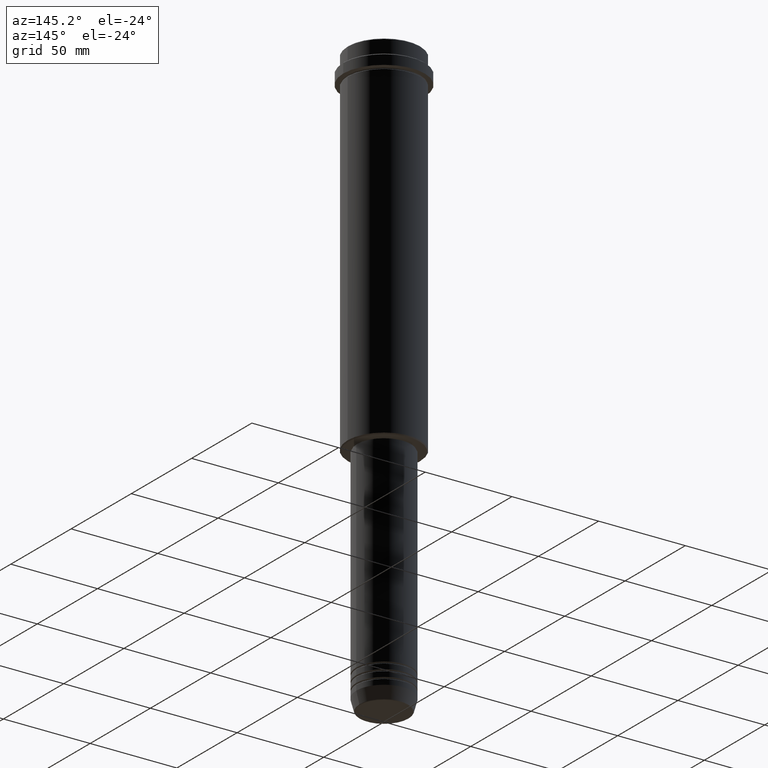
[diagram: clean part render]
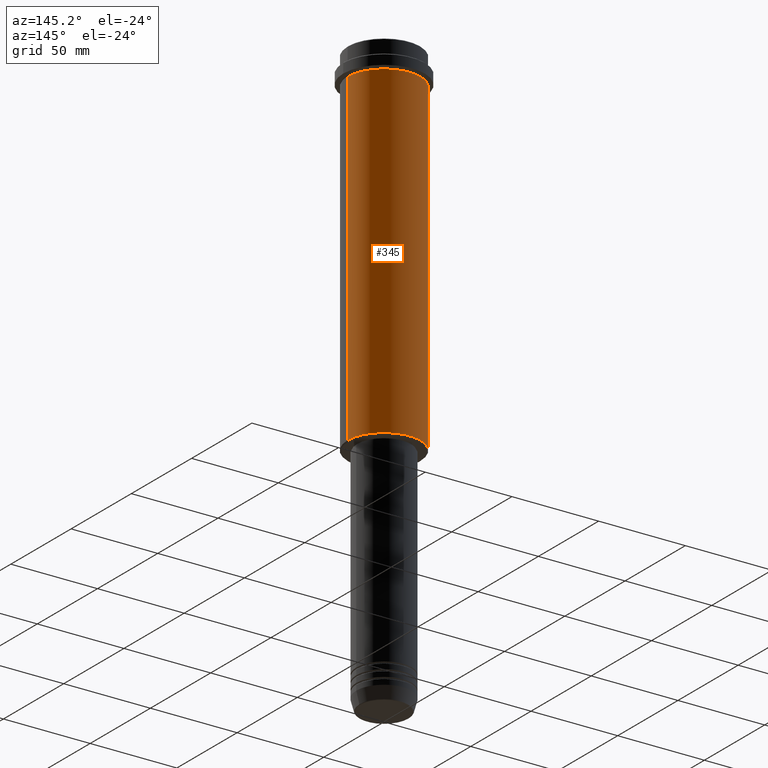
[diagram: same view with one face highlighted and labeled with its STEP entity id]
A machine part, auxiliary view. The second image highlights one B-rep face of the part: STEP entity #345.
In plain terms, the highlighted cylindrical surface (partial cylindrical patch) has radius 21 mm, axis along (-0, -0, 1).
Its self-contained STEP definition (entity closure, byte-faithful):
#16 = DIRECTION ( 'NONE',  ( -0.000000000000000000, -0.000000000000000000, 1.000000000000000000 ) ) ;
#25 = LINE ( 'NONE', #1323, #1312 ) ;
#35 = VERTEX_POINT ( 'NONE', #832 ) ;
#46 = ORIENTED_EDGE ( 'NONE', *, *, #584, .F. ) ;
#127 = CYLINDRICAL_SURFACE ( 'NONE', #1417, 20.99999999999999645 ) ;
#181 = ORIENTED_EDGE ( 'NONE', *, *, #1169, .T. ) ;
#221 = DIRECTION ( 'NONE',  ( 1.000000000000000000, 0.000000000000000000, 0.000000000000000000 ) ) ;
#268 = VERTEX_POINT ( 'NONE', #1390 ) ;
#345 = ADVANCED_FACE ( 'NONE', ( #429 ), #127, .T. ) ;
#423 = ORIENTED_EDGE ( 'NONE', *, *, #1279, .T. ) ;
#429 = FACE_OUTER_BOUND ( 'NONE', #892, .T. ) ;
#440 = DIRECTION ( 'NONE',  ( -0.000000000000000000, -0.000000000000000000, 1.000000000000000000 ) ) ;
#451 = DIRECTION ( 'NONE',  ( -0.000000000000000000, -0.000000000000000000, 1.000000000000000000 ) ) ;
#511 = CIRCLE ( 'NONE', #1336, 20.99999999999999645 ) ;
#533 = DIRECTION ( 'NONE',  ( -0.000000000000000000, -0.000000000000000000, 1.000000000000000000 ) ) ;
#552 = VECTOR ( 'NONE', #533, 1000.000000000000000 ) ;
#584 = EDGE_CURVE ( 'NONE', #35, #1053, #25, .T. ) ;
#665 = DIRECTION ( 'NONE',  ( -1.000000000000000000, 0.000000000000000000, 0.000000000000000000 ) ) ;
#672 = DIRECTION ( 'NONE',  ( 1.000000000000000000, 0.000000000000000000, 0.000000000000000000 ) ) ;
#685 = ORIENTED_EDGE ( 'NONE', *, *, #769, .F. ) ;
#762 = CARTESIAN_POINT ( 'NONE',  ( 0.000000000000000000, 0.000000000000000000, -204.5000000000000568 ) ) ;
#769 = EDGE_CURVE ( 'NONE', #1053, #268, #1182, .T. ) ;
#832 = CARTESIAN_POINT ( 'NONE',  ( 20.99999999999999645, 0.000000000000000000, -204.5000000000000568 ) ) ;
#863 = CARTESIAN_POINT ( 'NONE',  ( 0.000000000000000000, 0.000000000000000000, 0.000000000000000000 ) ) ;
#892 = EDGE_LOOP ( 'NONE', ( #181, #423, #685, #46 ) ) ;
#965 = LINE ( 'NONE', #1055, #552 ) ;
#1053 = VERTEX_POINT ( 'NONE', #1281 ) ;
#1055 = CARTESIAN_POINT ( 'NONE',  ( -20.99999999999999645, 2.571758278209441267E-15, 0.000000000000000000 ) ) ;
#1059 = CARTESIAN_POINT ( 'NONE',  ( -20.99999999999999645, 2.571758278209441267E-15, -204.5000000000000568 ) ) ;
#1127 = DIRECTION ( 'NONE',  ( -0.000000000000000000, -0.000000000000000000, 1.000000000000000000 ) ) ;
#1169 = EDGE_CURVE ( 'NONE', #35, #1248, #511, .T. ) ;
#1182 = CIRCLE ( 'NONE', #1208, 20.99999999999999645 ) ;
#1208 = AXIS2_PLACEMENT_3D ( 'NONE', #1326, #16, #221 ) ;
#1248 = VERTEX_POINT ( 'NONE', #1059 ) ;
#1279 = EDGE_CURVE ( 'NONE', #1248, #268, #965, .T. ) ;
#1281 = CARTESIAN_POINT ( 'NONE',  ( 20.99999999999999645, 0.000000000000000000, -16.00000000000000355 ) ) ;
#1312 = VECTOR ( 'NONE', #1127, 1000.000000000000000 ) ;
#1323 = CARTESIAN_POINT ( 'NONE',  ( 20.99999999999999645, 0.000000000000000000, 0.000000000000000000 ) ) ;
#1326 = CARTESIAN_POINT ( 'NONE',  ( 0.000000000000000000, 0.000000000000000000, -16.00000000000000355 ) ) ;
#1336 = AXIS2_PLACEMENT_3D ( 'NONE', #762, #440, #665 ) ;
#1390 = CARTESIAN_POINT ( 'NONE',  ( -20.99999999999999645, 2.571758278209441267E-15, -16.00000000000000355 ) ) ;
#1417 = AXIS2_PLACEMENT_3D ( 'NONE', #863, #451, #672 ) ;